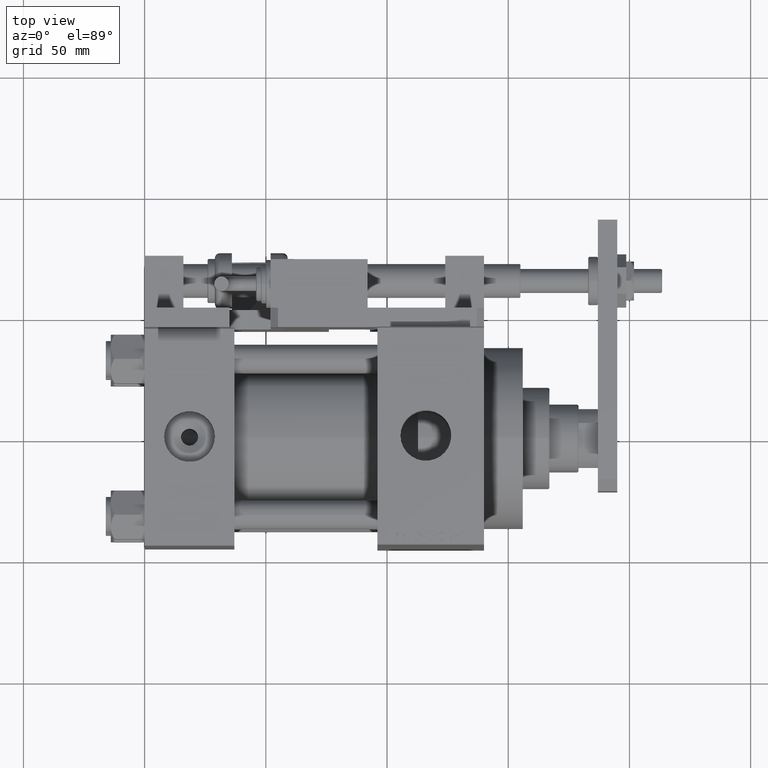
[diagram: clean part render]
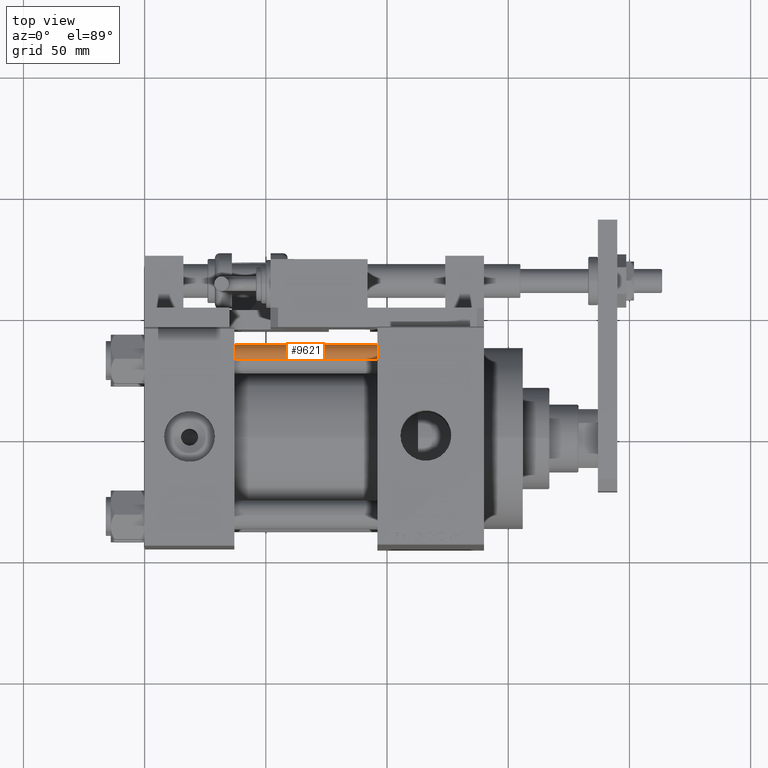
[diagram: same view with one face highlighted and labeled with its STEP entity id]
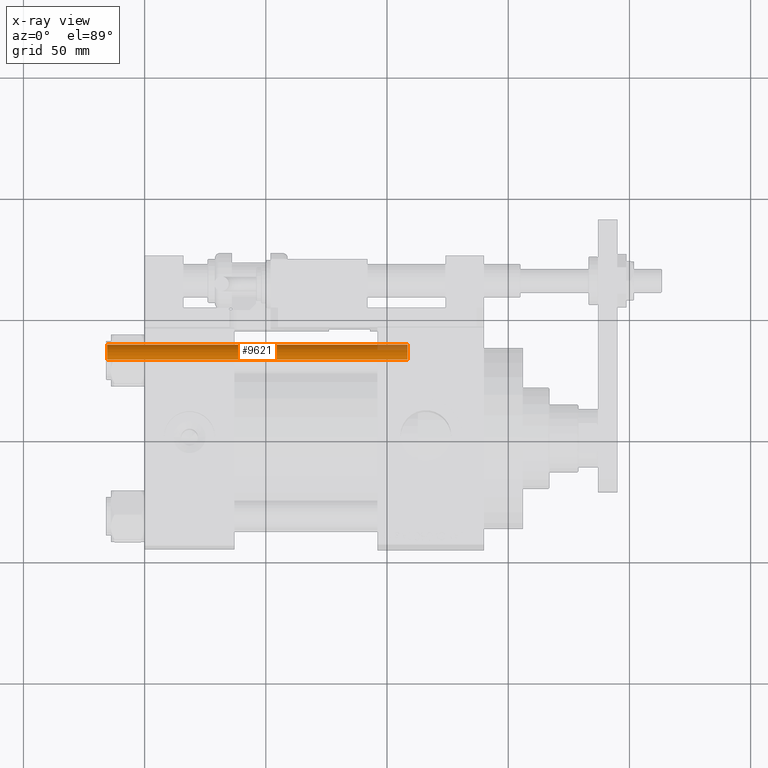
[diagram: x-ray of the same camera — body ghosted, the highlighted face saturated]
A machine part, top view. The second image highlights one B-rep face of the part: STEP entity #9621.
The next image is the same camera in x-ray: the body ghosted, the highlighted face saturated — about 4% of this face is hidden behind the body in this view.
In plain terms, the highlighted cylindrical surface (edge-blend (fillet) strip) has radius 6 mm, axis along (1, -0, -0).
Its self-contained STEP definition (entity closure, byte-faithful):
#1464 = DIRECTION ( 'NONE',  ( 0.000000000000000000, 0.000000000000000000, -1.000000000000000000 ) ) ;
#2404 = DIRECTION ( 'NONE',  ( -0.000000000000000000, -0.000000000000000000, -1.000000000000000000 ) ) ;
#3869 = AXIS2_PLACEMENT_3D ( 'NONE', #8097, #42019, #4477 ) ;
#4477 = DIRECTION ( 'NONE',  ( -1.000000000000000000, 0.000000000000000000, 0.000000000000000000 ) ) ;
#5227 = EDGE_CURVE ( 'NONE', #12810, #40329, #27790, .T. ) ;
#7071 = LINE ( 'NONE', #16215, #18677 ) ;
#8097 = CARTESIAN_POINT ( 'NONE',  ( 0.000000000000000000, 0.000000000000000000, 125.0000000000000000 ) ) ;
#9621 = ADVANCED_FACE ( 'NONE', ( #29231 ), #37273, .T. ) ;
#11728 = CARTESIAN_POINT ( 'NONE',  ( -6.000000000000000888, 0.000000000000000000, 124.5000000000000000 ) ) ;
#12810 = VERTEX_POINT ( 'NONE', #11728 ) ;
#14857 = CARTESIAN_POINT ( 'NONE',  ( 6.000000000000000888, 7.347880794884120722E-16, 0.4999999999999865663 ) ) ;
#15893 = VERTEX_POINT ( 'NONE', #14857 ) ;
#16215 = CARTESIAN_POINT ( 'NONE',  ( 6.000000000000000888, 7.347880794884120722E-16, 125.0000000000000000 ) ) ;
#16407 = VECTOR ( 'NONE', #2404, 1000.000000000000000 ) ;
#18677 = VECTOR ( 'NONE', #24290, 1000.000000000000000 ) ;
#18818 = CARTESIAN_POINT ( 'NONE',  ( 6.000000000000000888, 7.347880794884120722E-16, 124.5000000000000000 ) ) ;
#19801 = VERTEX_POINT ( 'NONE', #29338 ) ;
#21570 = ORIENTED_EDGE ( 'NONE', *, *, #21742, .T. ) ;
#21742 = EDGE_CURVE ( 'NONE', #40329, #15893, #7071, .T. ) ;
#23251 = LINE ( 'NONE', #35495, #16407 ) ;
#23939 = EDGE_LOOP ( 'NONE', ( #48191, #21570, #24494, #41636 ) ) ;
#24290 = DIRECTION ( 'NONE',  ( -0.000000000000000000, -0.000000000000000000, -1.000000000000000000 ) ) ;
#24494 = ORIENTED_EDGE ( 'NONE', *, *, #29653, .T. ) ;
#26370 = CARTESIAN_POINT ( 'NONE',  ( 0.000000000000000000, 0.000000000000000000, 0.4999999999999865663 ) ) ;
#27790 = CIRCLE ( 'NONE', #35820, 6.000000000000000888 ) ;
#29231 = FACE_OUTER_BOUND ( 'NONE', #23939, .T. ) ;
#29338 = CARTESIAN_POINT ( 'NONE',  ( -6.000000000000000888, 0.000000000000000000, 0.4999999999999865663 ) ) ;
#29653 = EDGE_CURVE ( 'NONE', #15893, #19801, #33080, .T. ) ;
#30825 = DIRECTION ( 'NONE',  ( 1.000000000000000000, 0.000000000000000000, 0.000000000000000000 ) ) ;
#33080 = CIRCLE ( 'NONE', #44636, 6.000000000000000888 ) ;
#35495 = CARTESIAN_POINT ( 'NONE',  ( -6.000000000000000888, 0.000000000000000000, 125.0000000000000000 ) ) ;
#35820 = AXIS2_PLACEMENT_3D ( 'NONE', #44021, #1464, #42720 ) ;
#37273 = CYLINDRICAL_SURFACE ( 'NONE', #3869, 6.000000000000000888 ) ;
#40329 = VERTEX_POINT ( 'NONE', #18818 ) ;
#41636 = ORIENTED_EDGE ( 'NONE', *, *, #53701, .F. ) ;
#42019 = DIRECTION ( 'NONE',  ( -0.000000000000000000, -0.000000000000000000, -1.000000000000000000 ) ) ;
#42720 = DIRECTION ( 'NONE',  ( 1.000000000000000000, 0.000000000000000000, 0.000000000000000000 ) ) ;
#43895 = DIRECTION ( 'NONE',  ( -0.000000000000000000, -0.000000000000000000, 1.000000000000000000 ) ) ;
#44021 = CARTESIAN_POINT ( 'NONE',  ( 0.000000000000000000, 0.000000000000000000, 124.5000000000000000 ) ) ;
#44636 = AXIS2_PLACEMENT_3D ( 'NONE', #26370, #43895, #30825 ) ;
#48191 = ORIENTED_EDGE ( 'NONE', *, *, #5227, .T. ) ;
#53701 = EDGE_CURVE ( 'NONE', #12810, #19801, #23251, .T. ) ;